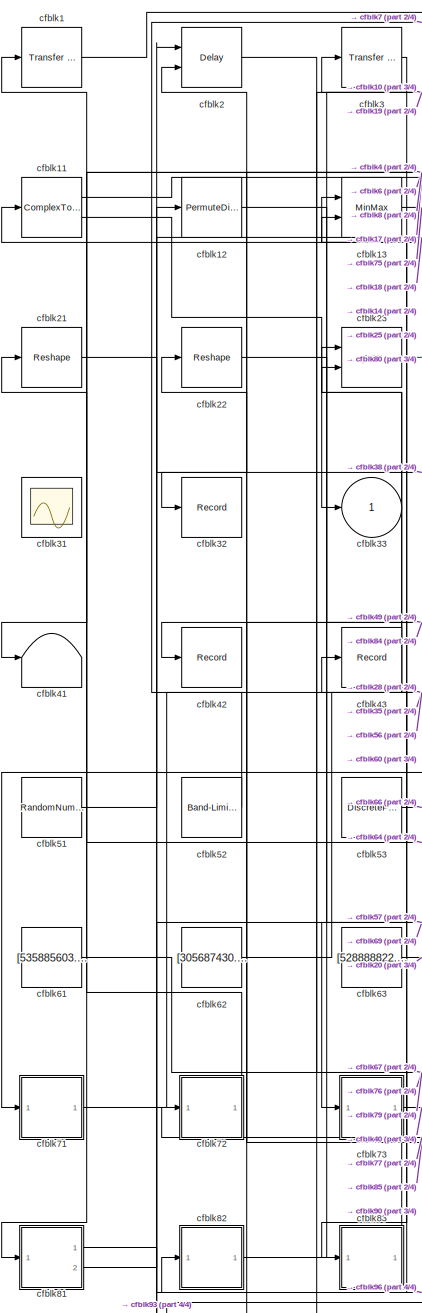
[diagram: root canvas - part 1/4, left side, full height]
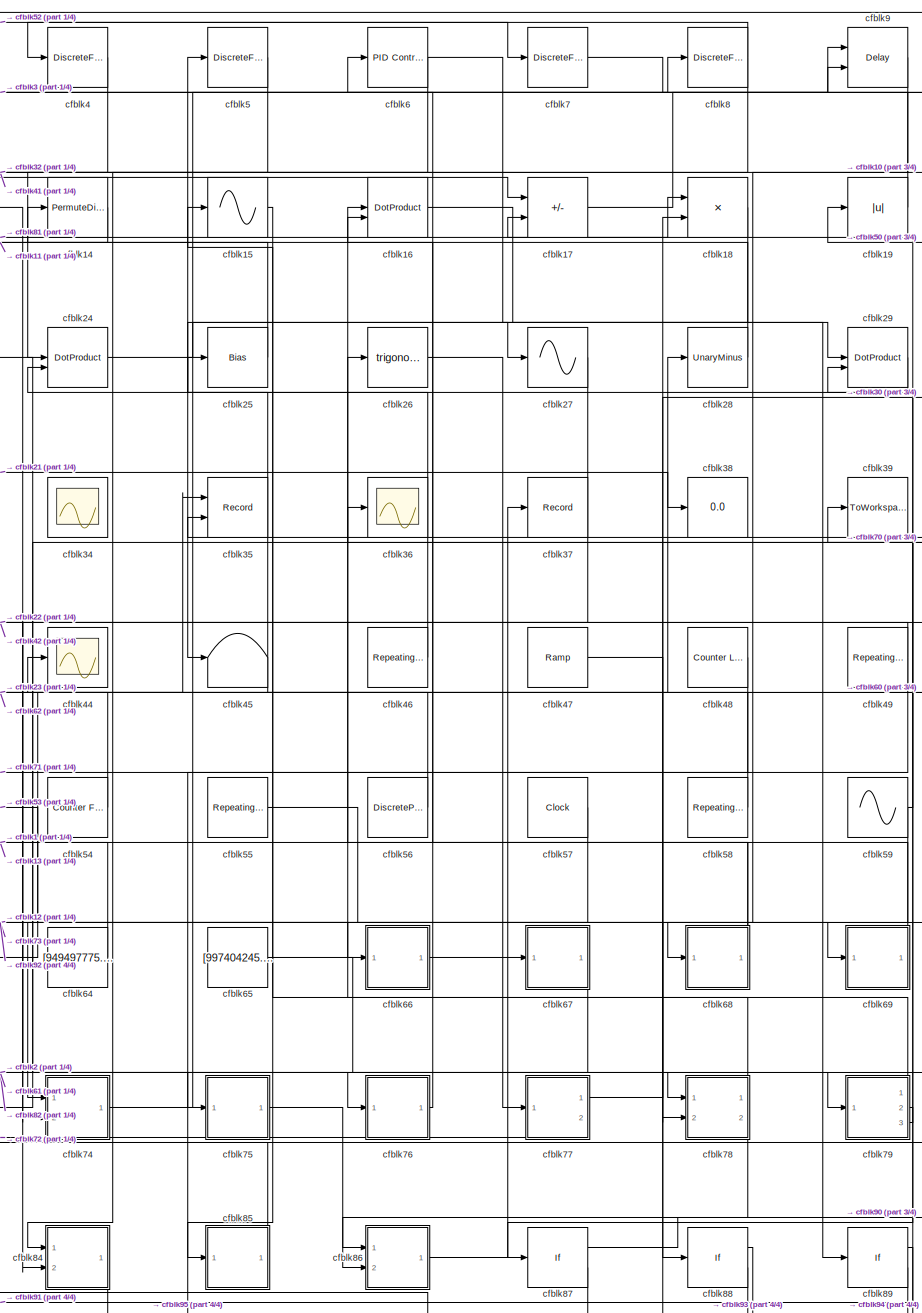
[diagram: root canvas - part 2/4, center side, full height]
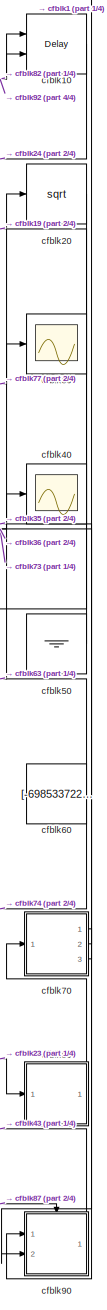
[diagram: root canvas - part 3/4, right side, full height]
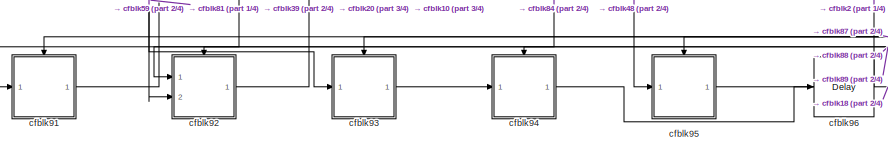
[diagram: root canvas - part 4/4, bottom left region]
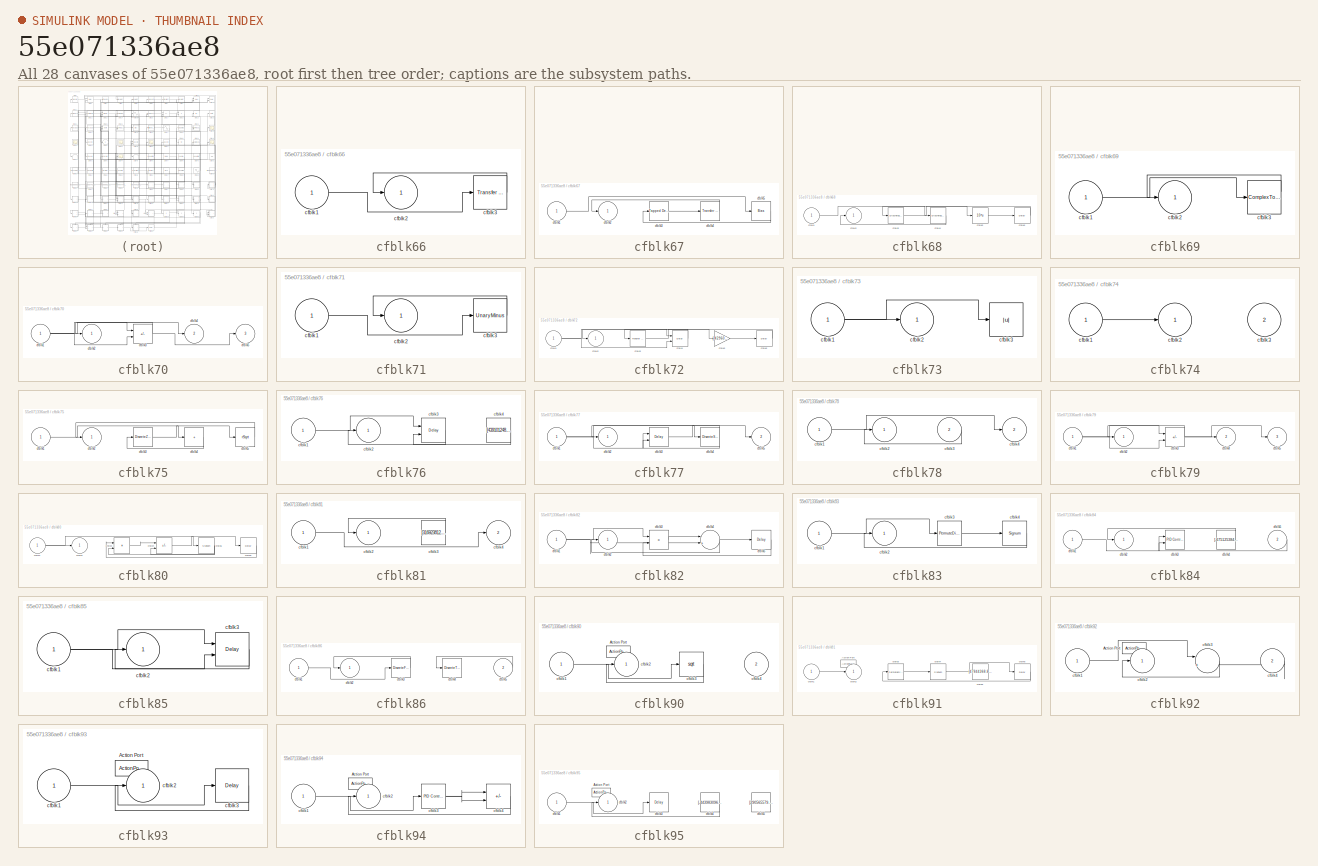
[diagram: thumbnail index - all 28 canvases of the model, root first then tree order]
MODEL slx_55e071336ae8
KIND model
CONFIG AbsTol = auto
CONFIG EnableMultiTasking = off
CONFIG FixedStep = auto
CONFIG MaxStep = auto
CONFIG MinStep = auto
CONFIG RelTol = 1e-3
CONFIG SampleTimeConstraint = Unconstrained
CONFIG SolverName = VariableStepAuto
CONFIG StartTime = 0.0
CONFIG StopTime = 10.0
BLOCK [Reference] cfblk1  REF=simulink/Discrete/Transfer Fcn
Real Zero
  Ports = [1, 1]
  SourceBlock = simulink/Discrete/Transfer Fcn\nReal Zero
  SourceProductBaseCode = SL
  SourceType = Transfer Fcn Real Zero
BLOCK [Delay] cfblk10
  InputPortMap = u0,e6
  Ports = [2, 1]
  SampleTime = 1
  ShowEnablePort = on
BLOCK [ComplexToRealImag] cfblk11
  Ports = [1, 2]
BLOCK [PermuteDimensions] cfblk12
BLOCK [MinMax] cfblk13
  Inputs = 2
  Ports = [2, 1]
BLOCK [PermuteDimensions] cfblk14
BLOCK [Sin] cfblk15
  Ports = [1, 1]
  SampleTime = 0
  TimeSource = Use external signal
BLOCK [DotProduct] cfblk16
  OutDataTypeStr = Inherit: Inherit via internal rule
BLOCK [Sum] cfblk17
  IconShape = rectangular
  Inputs = +-
  Ports = [2, 1]
BLOCK [Product] cfblk18
  Inputs = **
  Ports = [2, 1]
BLOCK [Abs] cfblk19
  SaturateOnIntegerOverflow = off
BLOCK [Delay] cfblk2
  InputPortMap = u0,e6
  Ports = [2, 1]
  SampleTime = 1
  ShowEnablePort = on
BLOCK [Sqrt] cfblk20
BLOCK [Reshape] cfblk21
  Ports = [1, 1]
BLOCK [Reshape] cfblk22
  Ports = [1, 1]
BLOCK [Math] cfblk23
  Operator = pow
  Ports = [2, 1]
BLOCK [DotProduct] cfblk24
  OutDataTypeStr = Inherit: Inherit via internal rule
BLOCK [Bias] cfblk25
  Bias = [844499976.842909]
  SaturateOnIntegerOverflow = off
BLOCK [Trigonometry] cfblk26
  Ports = [1, 1]
BLOCK [Sin] cfblk27
  Ports = [1, 1]
  SampleTime = 0
  TimeSource = Use external signal
BLOCK [UnaryMinus] cfblk28
BLOCK [DotProduct] cfblk29
  OutDataTypeStr = Inherit: Inherit via internal rule
BLOCK [Reference] cfblk3  REF=simulink/Discrete/Transfer Fcn
First Order
  Ports = [1, 1]
  SourceBlock = simulink/Discrete/Transfer Fcn\nFirst Order
  SourceProductBaseCode = SL
  SourceType = First Order Transfer Fcn
BLOCK [Scope] cfblk30
  Floating = off
  NumInputPorts = 1
  Ports = [1]
BLOCK [Scope] cfblk31
  Floating = on
  NumInputPorts = 1
  Ports = []
BLOCK [Record] cfblk32
  FileSettingsInternal = {"entries":[{"content":{"excelSettings":{"content":{},"type":"Streamout.ExcelSettings"}},"type":"Streamout.FileSettingStorage","uuid":"f8cac019-48e6-4489-905a-432bda5f2089"}],"packageUris":["http://schema.mathworks.com/mf0/streamout_blocks/R2020a"],"version":"1.0"}
  Ports = [1]
  SignalsInternal = {"entries":[{"content":{"signals":[{"content":{"blockPath":["sampleModel254/cfblk32"],"channel":[],"dimensions":[1],"domain":"sampleModel254/cfblk32","lineColor":"#64d413","plots":[1],"port":1,"sid":[""],"signalID":10374,"signalName":"cfblk6"},"type":"RecordBlkView.Signal","uuid":"dce0b534-ecb6-4d5b-a233-2a280a14c64b"}]},"type":"RecordBlkView.InputSignals","uuid":"4063d075-ef2d-4937-aee0-8c6ee8d3b...<+97ch>
  VisualizationBindings = {"sparklinesplugin":{"info":[{"bindingParametersList":[],"subplotID":1}]}}
BLOCK [Outport] cfblk33
BLOCK [Scope] cfblk34
  Floating = on
  NumInputPorts = 1
  Ports = []
BLOCK [Record] cfblk35
  CompatibilityTag = XY
  FileSettingsInternal = {"entries":[{"content":{"excelSettings":{"content":{},"type":"Streamout.ExcelSettings"}},"type":"Streamout.FileSettingStorage","uuid":"45c7964c-3e30-4dde-8807-5f474ab24dd7"}],"packageUris":["http://schema.mathworks.com/mf0/streamout_blocks/R2020a"],"version":"1.0"}
  Layout = [1 1]
  Ports = [2]
  SignalsInternal = {"entries":[{"content":{"signals":[{"content":{"blockPath":["sampleModel254/cfblk35"],"channel":[],"dimensions":[1],"domain":"sampleModel254/cfblk35","lineColor":"#a2142f","plots":[1],"port":1,"sid":[""],"signalID":10378,"signalName":"cfblk71"},"type":"RecordBlkView.Signal","uuid":"ef5cb758-7369-4c78-a78d-835c385c3eb8"},{"content":{"blockPath":["sampleModel254/cfblk35"],"channel":[],"dimensions":[...<+387ch>
  VisualizationBindings = {"xyplotplugin":{"info":[{"series":[{"bindingParametersList":[{"parameter":"X-Axis","signalID":10378,"signalName":"cfblk71"},{"parameter":"Y-Axis","signalID":10382,"signalName":"cfblk70:3"}],"seriesID":26922}],"subplotID":1}]}}
BLOCK [Scope] cfblk36
  Floating = off
  NumInputPorts = 1
  Ports = [1]
BLOCK [Record] cfblk37
  FileSettingsInternal = {"entries":[{"content":{"excelSettings":{"content":{},"type":"Streamout.ExcelSettings"}},"type":"Streamout.FileSettingStorage","uuid":"cea6e5c2-86dc-4383-be1d-b91c9e701202"}],"packageUris":["http://schema.mathworks.com/mf0/streamout_blocks/R2020a"],"version":"1.0"}
  Ports = [1]
  SignalsInternal = {"entries":[{"content":{"signals":[{"content":{"blockPath":["sampleModel254/cfblk37"],"channel":[],"dimensions":[1],"domain":"sampleModel254/cfblk37","lineColor":"#d95319","plots":[1],"port":1,"sid":[""],"signalID":10394,"signalName":"cfblk66"},"type":"RecordBlkView.Signal","uuid":"769467fa-09e5-418b-a735-847f3fde8334"}]},"type":"RecordBlkView.InputSignals","uuid":"660e46a3-809b-43d8-8dce-437cd846...<+98ch>
  VisualizationBindings = {"sparklinesplugin":{"info":[{"bindingParametersList":[],"subplotID":1}]}}
BLOCK [Display] cfblk38
  Decimation = 1
  Ports = [1]
BLOCK [ToWorkspace] cfblk39
  FixptAsFi = on
  MaxDataPoints = inf
  Ports = [1]
  SampleTime = -1
  SaveFormat = Timeseries
  VariableName = ezuajsf
BLOCK [DiscreteFilter] cfblk4
  InputPortMap = u0
  Ports = [1, 1]
  SampleTime = 1
BLOCK [Scope] cfblk40
  Floating = off
  NumInputPorts = 1
  Ports = [1]
BLOCK [Terminator] cfblk41
BLOCK [Record] cfblk42
  FileSettingsInternal = {"entries":[{"content":{"excelSettings":{"content":{},"type":"Streamout.ExcelSettings"}},"type":"Streamout.FileSettingStorage","uuid":"c36e397d-8249-40e7-b36d-c436f8041f2b"}],"packageUris":["http://schema.mathworks.com/mf0/streamout_blocks/R2020a"],"version":"1.0"}
  Ports = [1]
  SignalsInternal = {"entries":[{"content":{"signals":[{"content":{"blockPath":["sampleModel254/cfblk42"],"channel":[],"dimensions":[1],"domain":"sampleModel254/cfblk42","lineColor":"#22b573","plots":[1],"port":1,"sid":[""],"signalID":10386,"signalName":"cfblk49"},"type":"RecordBlkView.Signal","uuid":"95bb58e3-29ab-4543-933f-3fe3cf8075e7"}]},"type":"RecordBlkView.InputSignals","uuid":"3d27722b-4af2-4bd2-8e99-f87c6225...<+98ch>
  VisualizationBindings = {"sparklinesplugin":{"info":[{"bindingParametersList":[],"subplotID":1}]}}
BLOCK [Record] cfblk43
  FileSettingsInternal = {"entries":[{"content":{"excelSettings":{"content":{},"type":"Streamout.ExcelSettings"}},"type":"Streamout.FileSettingStorage","uuid":"d18e721d-55df-43b9-9b5f-e2e7fb6a57d4"}],"packageUris":["http://schema.mathworks.com/mf0/streamout_blocks/R2020a"],"version":"1.0"}
  Ports = [1]
  SignalsInternal = {"entries":[{"content":{"signals":[{"content":{"blockPath":["sampleModel254/cfblk43"],"channel":[],"dimensions":[1,1],"domain":"sampleModel254/cfblk43","lineColor":"#0072bd","plots":[1],"port":1,"sid":[""],"signalID":10390,"signalName":"cfblk90"},"type":"RecordBlkView.Signal","uuid":"5a0785be-ac31-40ab-801e-d0ec680084d0"}]},"type":"RecordBlkView.InputSignals","uuid":"405e9301-8fb1-412e-9e94-656a63...<+100ch>
  VisualizationBindings = {"sparklinesplugin":{"info":[{"bindingParametersList":[],"subplotID":1}]}}
BLOCK [Scope] cfblk44
  Floating = off
  NumInputPorts = 1
  Ports = [1]
BLOCK [Terminator] cfblk45
BLOCK [Reference] cfblk46  REF=simulink/Sources/Repeating
Sequence
  Ports = [0, 1]
  SourceBlock = simulink/Sources/Repeating\nSequence
  SourceProductBaseCode = SL
  SourceType = Repeating table
BLOCK [Reference] cfblk47  REF=simulink/Sources/Ramp
  Ports = [0, 1]
  SourceBlock = simulink/Sources/Ramp
  SourceProductBaseCode = SL
  SourceType = Ramp
BLOCK [Reference] cfblk48  REF=simulink/Sources/Counter
Limited
  Ports = [0, 1]
  SourceBlock = simulink/Sources/Counter\nLimited
  SourceProductBaseCode = SL
  SourceType = Counter Limited
BLOCK [Reference] cfblk49  REF=simulink/Sources/Repeating
Sequence
Interpolated
  Ports = [0, 1]
  SourceBlock = simulink/Sources/Repeating\nSequence\nInterpolated
  SourceProductBaseCode = SL
  SourceType = Repeating Sequence Interpolated
BLOCK [DiscreteFir] cfblk5
  InputPortMap = u0
  OutputPortMap = o0
  Ports = [1, 1]
  SampleTime = 1
BLOCK [Ground] cfblk50
BLOCK [RandomNumber] cfblk51
  Mean = [-71879.908599]
  SampleTime = 0.1
  Seed = [190273375.000000]
  Variance = [65031.092299]
BLOCK [Reference] cfblk52  REF=simulink/Sources/Band-Limited
White Noise
  Ports = [0, 1]
  SourceBlock = simulink/Sources/Band-Limited\nWhite Noise
  SourceProductBaseCode = SL
  SourceType = Band-Limited White Noise.
BLOCK [DiscretePulseGenerator] cfblk53
  Amplitude = [128987479.442935]
  Period = [95035691.423141]
  PhaseDelay = [6.000000]
  Ports = [0, 1]
  PulseType = Time based
  PulseWidth = 5
BLOCK [Reference] cfblk54  REF=simulink/Sources/Counter
Free-Running
  Ports = [0, 1]
  SourceBlock = simulink/Sources/Counter\nFree-Running
  SourceProductBaseCode = SL
  SourceType = Counter Free-Running
BLOCK [Reference] cfblk55  REF=simulink/Sources/Repeating
Sequence
Stair
  Ports = [0, 1]
  SourceBlock = simulink/Sources/Repeating\nSequence\nStair
  SourceProductBaseCode = SL
  SourceType = Repeating Sequence Stair
BLOCK [DiscretePulseGenerator] cfblk56
  Amplitude = [530617936.673465]
  Period = [21583410.222878]
  PhaseDelay = [1.000000]
  Ports = [0, 1]
  PulseType = Time based
  PulseWidth = 5
BLOCK [Clock] cfblk57
BLOCK [Reference] cfblk58  REF=simulink/Sources/Repeating
Sequence
Stair
  Ports = [0, 1]
  SourceBlock = simulink/Sources/Repeating\nSequence\nStair
  SourceProductBaseCode = SL
  SourceType = Repeating Sequence Stair
BLOCK [Sin] cfblk59
  Amplitude = [160730542.928432]
  Bias = [-895763659.447249]
  Ports = [0, 1]
  SampleTime = 0
BLOCK [Reference] cfblk6  REF=slpidlib/PID Controller
  Ports = [1, 1]
  SourceBlock = slpidlib/PID Controller
  SourceProductBaseCode = SL
  SourceType = PID 1dof
BLOCK [Constant] cfblk60
  SampleTime = 1
  Value = [-698533722.368524]
BLOCK [Constant] cfblk61
  SampleTime = 1
  Value = [535885603.010762]
BLOCK [Constant] cfblk62
  SampleTime = 1
  Value = [305687430.388225]
BLOCK [Constant] cfblk63
  SampleTime = 1
  Value = [528888822.615743]
BLOCK [Constant] cfblk64
  SampleTime = 1
  Value = [949497775.080613]
BLOCK [Constant] cfblk65
  SampleTime = 1
  Value = [997404245.696209]
BLOCK [SubSystem] cfblk66
  Ports = [1, 1]
  RequestExecContextInheritance = off
BLOCK [Inport] cfblk66/cfblk1
BLOCK [Outport] cfblk66/cfblk2
BLOCK [Reference] cfblk66/cfblk3  REF=simulink/Discrete/Transfer Fcn
Real Zero
  Ports = [1, 1]
  SourceBlock = simulink/Discrete/Transfer Fcn\nReal Zero
  SourceProductBaseCode = SL
  SourceType = Transfer Fcn Real Zero
BLOCK [SubSystem] cfblk67
  Ports = [1, 1]
  RequestExecContextInheritance = off
BLOCK [Inport] cfblk67/cfblk1
BLOCK [Outport] cfblk67/cfblk2
BLOCK [Reference] cfblk67/cfblk3  REF=simulink/Discrete/Tapped Delay
  Ports = [1, 1]
  SourceBlock = simulink/Discrete/Tapped Delay
  SourceProductBaseCode = SL
  SourceType = Tapped Delay Line
BLOCK [Reference] cfblk67/cfblk4  REF=simulink/Discrete/Transfer Fcn
First Order
  Ports = [1, 1]
  SourceBlock = simulink/Discrete/Transfer Fcn\nFirst Order
  SourceProductBaseCode = SL
  SourceType = First Order Transfer Fcn
BLOCK [Bias] cfblk67/cfblk5
  Bias = [493351952.248156]
  SaturateOnIntegerOverflow = off
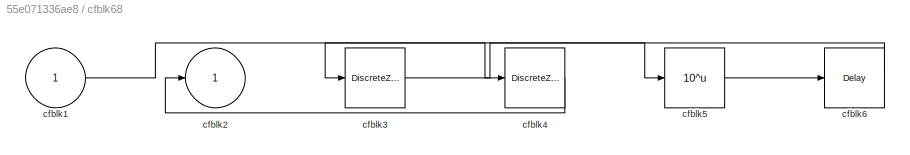
BLOCK [SubSystem] cfblk68
  Ports = [1, 1]
  RequestExecContextInheritance = off
BLOCK [Inport] cfblk68/cfblk1
BLOCK [Outport] cfblk68/cfblk2
BLOCK [DiscreteZeroPole] cfblk68/cfblk3
  Gain = 1
  Poles = [0 0.5]
BLOCK [DiscreteZeroPole] cfblk68/cfblk4
  Gain = 1
  Poles = [0 0.5]
BLOCK [Math] cfblk68/cfblk5
  Operator = 10^u
  Ports = [1, 1]
BLOCK [Delay] cfblk68/cfblk6
  InputPortMap = u0
  Ports = [1, 1]
  SampleTime = 1
BLOCK [SubSystem] cfblk69
  Ports = [1, 1]
  RequestExecContextInheritance = off
BLOCK [Inport] cfblk69/cfblk1
BLOCK [Outport] cfblk69/cfblk2
BLOCK [ComplexToRealImag] cfblk69/cfblk3
  Ports = [1, 2]
BLOCK [DiscreteFilter] cfblk7
  InputPortMap = u0
  Ports = [1, 1]
  SampleTime = 1
BLOCK [SubSystem] cfblk70
  Ports = [1, 3]
  RequestExecContextInheritance = off
BLOCK [Inport] cfblk70/cfblk1
BLOCK [Outport] cfblk70/cfblk2
BLOCK [Sum] cfblk70/cfblk3
  IconShape = rectangular
  Inputs = +-
  Ports = [2, 1]
BLOCK [Outport] cfblk70/cfblk4
  Port = 2
BLOCK [Outport] cfblk70/cfblk5
  Port = 3
BLOCK [SubSystem] cfblk71
  Ports = [1, 1]
  RequestExecContextInheritance = off
BLOCK [Inport] cfblk71/cfblk1
BLOCK [Outport] cfblk71/cfblk2
BLOCK [UnaryMinus] cfblk71/cfblk3
BLOCK [SubSystem] cfblk72
  Ports = [1, 1]
  RequestExecContextInheritance = off
BLOCK [Inport] cfblk72/cfblk1
BLOCK [Outport] cfblk72/cfblk2
BLOCK [Reference] cfblk72/cfblk3  REF=simulink/Discrete/Transfer Fcn
Lead or Lag
  Ports = [1, 1]
  SourceBlock = simulink/Discrete/Transfer Fcn\nLead or Lag
  SourceProductBaseCode = SL
  SourceType = Lead or Lag Compensator
BLOCK [Delay] cfblk72/cfblk4
  DelayLengthSource = Input port
  InputPortMap = u0,p1
  Ports = [2, 1]
  SampleTime = 1
BLOCK [Gain] cfblk72/cfblk5
  Gain = [-429600139.086581]
BLOCK [Delay] cfblk72/cfblk6
  InputPortMap = u0
  Ports = [1, 1]
  SampleTime = 1
BLOCK [SubSystem] cfblk73
  Ports = [1, 1]
  RequestExecContextInheritance = off
BLOCK [Inport] cfblk73/cfblk1
BLOCK [Outport] cfblk73/cfblk2
BLOCK [Abs] cfblk73/cfblk3
  SaturateOnIntegerOverflow = off
BLOCK [SubSystem] cfblk74
  Ports = [2, 1]
  RequestExecContextInheritance = off
BLOCK [Inport] cfblk74/cfblk1
BLOCK [Outport] cfblk74/cfblk2
BLOCK [Inport] cfblk74/cfblk3
  Port = 2
BLOCK [SubSystem] cfblk75
  Ports = [1, 1]
  RequestExecContextInheritance = off
BLOCK [Inport] cfblk75/cfblk1
BLOCK [Outport] cfblk75/cfblk2
BLOCK [DiscreteZeroPole] cfblk75/cfblk3
  Gain = 1
  Poles = [0 0.5]
BLOCK [Sum] cfblk75/cfblk4
  IconShape = rectangular
  Inputs = +
  Ports = [1, 1]
BLOCK [Sqrt] cfblk75/cfblk5
  AlgorithmType = Newton-Raphson
  Operator = rSqrt
BLOCK [SubSystem] cfblk76
  Ports = [1, 1]
  RequestExecContextInheritance = off
BLOCK [Inport] cfblk76/cfblk1
BLOCK [Outport] cfblk76/cfblk2
BLOCK [Delay] cfblk76/cfblk3
  DelayLengthSource = Input port
  InputPortMap = u0,p1
  Ports = [2, 1]
  SampleTime = 1
BLOCK [Constant] cfblk76/cfblk4
  SampleTime = 1
  Value = [439101248.197444]
BLOCK [SubSystem] cfblk77
  Ports = [1, 2]
  RequestExecContextInheritance = off
BLOCK [Inport] cfblk77/cfblk1
BLOCK [Outport] cfblk77/cfblk2
BLOCK [Delay] cfblk77/cfblk3
  InputPortMap = u0,e6
  Ports = [2, 1]
  SampleTime = 1
  ShowEnablePort = on
BLOCK [DiscreteStateSpace] cfblk77/cfblk4
BLOCK [Outport] cfblk77/cfblk5
  Port = 2
BLOCK [SubSystem] cfblk78
  Ports = [2, 2]
  RequestExecContextInheritance = off
BLOCK [Inport] cfblk78/cfblk1
BLOCK [Outport] cfblk78/cfblk2
BLOCK [Inport] cfblk78/cfblk3
  Port = 2
BLOCK [Outport] cfblk78/cfblk4
  Port = 2
BLOCK [SubSystem] cfblk79
  Ports = [1, 3]
  RequestExecContextInheritance = off
BLOCK [Inport] cfblk79/cfblk1
BLOCK [Outport] cfblk79/cfblk2
BLOCK [Sum] cfblk79/cfblk3
  IconShape = rectangular
  Inputs = +-
  Ports = [2, 1]
BLOCK [Outport] cfblk79/cfblk4
  Port = 2
BLOCK [Outport] cfblk79/cfblk5
  Port = 3
BLOCK [DiscreteFilter] cfblk8
  InputPortMap = u0
  Ports = [1, 1]
  SampleTime = 1
BLOCK [SubSystem] cfblk80
  Ports = [1, 1]
  RequestExecContextInheritance = off
BLOCK [Inport] cfblk80/cfblk1
BLOCK [Outport] cfblk80/cfblk2
BLOCK [Product] cfblk80/cfblk3
  Ports = [2, 1]
BLOCK [Sum] cfblk80/cfblk4
  IconShape = rectangular
  Inputs = +-
  Ports = [2, 1]
BLOCK [Signum] cfblk80/cfblk5
BLOCK [Delay] cfblk80/cfblk6
  InputPortMap = u0
  Ports = [1, 1]
  SampleTime = 1
BLOCK [SubSystem] cfblk81
  Ports = [1, 2]
  RequestExecContextInheritance = off
BLOCK [Inport] cfblk81/cfblk1
BLOCK [Outport] cfblk81/cfblk2
BLOCK [Constant] cfblk81/cfblk3
  SampleTime = 1
  Value = [316923812.168130]
BLOCK [Outport] cfblk81/cfblk4
  Port = 2
BLOCK [SubSystem] cfblk82
  Ports = [1, 1]
  RequestExecContextInheritance = off
BLOCK [Inport] cfblk82/cfblk1
BLOCK [Outport] cfblk82/cfblk2
BLOCK [Product] cfblk82/cfblk3
  Ports = [2, 1]
BLOCK [Sum] cfblk82/cfblk4
  Inputs = |++
  Ports = [2, 1]
BLOCK [Delay] cfblk82/cfblk5
  InputPortMap = u0
  Ports = [1, 1]
  SampleTime = 1
BLOCK [SubSystem] cfblk83
  Ports = [1, 1]
  RequestExecContextInheritance = off
BLOCK [Inport] cfblk83/cfblk1
BLOCK [Outport] cfblk83/cfblk2
BLOCK [PermuteDimensions] cfblk83/cfblk3
BLOCK [Signum] cfblk83/cfblk4
BLOCK [SubSystem] cfblk84
  Ports = [2, 1]
  RequestExecContextInheritance = off
BLOCK [Inport] cfblk84/cfblk1
BLOCK [Outport] cfblk84/cfblk2
BLOCK [Reference] cfblk84/cfblk3  REF=slpidlib/PID Controller (2DOF)
  Ports = [2, 1]
  SourceBlock = slpidlib/PID Controller (2DOF)
  SourceProductBaseCode = SL
  SourceType = PID 2dof
BLOCK [Constant] cfblk84/cfblk4
  SampleTime = 1
  Value = [-675125384.353704]
BLOCK [Inport] cfblk84/cfblk5
  Port = 2
BLOCK [SubSystem] cfblk85
  Ports = [1, 1]
  RequestExecContextInheritance = off
BLOCK [Inport] cfblk85/cfblk1
BLOCK [Outport] cfblk85/cfblk2
BLOCK [Delay] cfblk85/cfblk3
  InputPortMap = u0,e6
  Ports = [2, 1]
  SampleTime = 1
  ShowEnablePort = on
BLOCK [SubSystem] cfblk86
  Ports = [2, 1]
  RequestExecContextInheritance = off
BLOCK [Inport] cfblk86/cfblk1
BLOCK [Outport] cfblk86/cfblk2
BLOCK [DiscreteFir] cfblk86/cfblk3
  InputPortMap = u0
  OutputPortMap = o0
  Ports = [1, 1]
  SampleTime = 1
BLOCK [DiscreteTransferFcn] cfblk86/cfblk4
  InputPortMap = u0
  Ports = [1, 1]
  SampleTime = 1
BLOCK [Inport] cfblk86/cfblk5
  Port = 2
BLOCK [If] cfblk87
  IfExpression = u1 >= 0
  Ports = [1, 2]
  SampleTime = 1
BLOCK [If] cfblk88
  IfExpression = u1 >= 0
  Ports = [1, 2]
  SampleTime = 1
BLOCK [If] cfblk89
  IfExpression = u1 >= 0
  Ports = [1, 2]
  SampleTime = 1
BLOCK [Delay] cfblk9
  DelayLengthSource = Input port
  InputPortMap = u0,p1
  Ports = [2, 1]
  SampleTime = 1
BLOCK [SubSystem] cfblk90
  Ports = [2, 1, 0, 0, 0, 0, 0, 1]
  RequestExecContextInheritance = off
  TreatAsAtomicUnit = on
BLOCK [ActionPort] cfblk90/Action Port
  ActionPortLabel = if(u1 >= 0)
BLOCK [Inport] cfblk90/cfblk1
BLOCK [Outport] cfblk90/cfblk2
BLOCK [Sqrt] cfblk90/cfblk3
BLOCK [Inport] cfblk90/cfblk4
  Port = 2
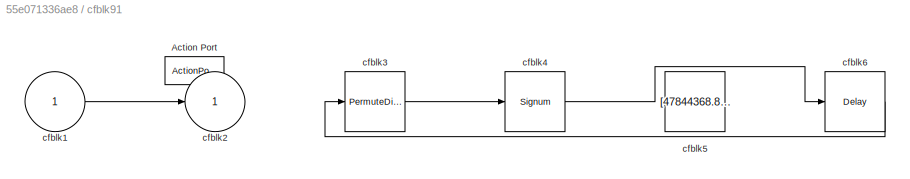
BLOCK [SubSystem] cfblk91
  Ports = [1, 1, 0, 0, 0, 0, 0, 1]
  RequestExecContextInheritance = off
  TreatAsAtomicUnit = on
BLOCK [ActionPort] cfblk91/Action Port
  ActionPortLabel = else
BLOCK [Inport] cfblk91/cfblk1
BLOCK [Outport] cfblk91/cfblk2
BLOCK [PermuteDimensions] cfblk91/cfblk3
BLOCK [Signum] cfblk91/cfblk4
BLOCK [Constant] cfblk91/cfblk5
  SampleTime = 1
  Value = [47844368.817378]
BLOCK [Delay] cfblk91/cfblk6
  InputPortMap = u0
  Ports = [1, 1]
BLOCK [SubSystem] cfblk92
  Ports = [2, 1, 0, 0, 0, 0, 0, 1]
  RequestExecContextInheritance = off
  TreatAsAtomicUnit = on
BLOCK [ActionPort] cfblk92/Action Port
  ActionPortLabel = if(u1 >= 0)
BLOCK [Inport] cfblk92/cfblk1
BLOCK [Outport] cfblk92/cfblk2
BLOCK [Sum] cfblk92/cfblk3
  Inputs = |++
  Ports = [2, 1]
BLOCK [Inport] cfblk92/cfblk4
  Port = 2
BLOCK [SubSystem] cfblk93
  Ports = [1, 1, 0, 0, 0, 0, 0, 1]
  RequestExecContextInheritance = off
  TreatAsAtomicUnit = on
BLOCK [ActionPort] cfblk93/Action Port
  ActionPortLabel = else
BLOCK [Inport] cfblk93/cfblk1
BLOCK [Outport] cfblk93/cfblk2
BLOCK [Delay] cfblk93/cfblk3
  InputPortMap = u0
  Ports = [1, 1]
BLOCK [SubSystem] cfblk94
  Ports = [1, 1, 0, 0, 0, 0, 0, 1]
  RequestExecContextInheritance = off
  TreatAsAtomicUnit = on
BLOCK [ActionPort] cfblk94/Action Port
  ActionPortLabel = if(u1 >= 0)
BLOCK [Inport] cfblk94/cfblk1
BLOCK [Outport] cfblk94/cfblk2
BLOCK [Reference] cfblk94/cfblk3  REF=slpidlib/PID Controller
  Ports = [1, 1]
  SourceBlock = slpidlib/PID Controller
  SourceProductBaseCode = SL
  SourceType = PID 1dof
BLOCK [Sum] cfblk94/cfblk4
  IconShape = rectangular
  Inputs = +-
  Ports = [2, 1]
BLOCK [SubSystem] cfblk95
  Ports = [1, 1, 0, 0, 0, 0, 0, 1]
  RequestExecContextInheritance = off
  TreatAsAtomicUnit = on
BLOCK [ActionPort] cfblk95/Action Port
  ActionPortLabel = else
BLOCK [Inport] cfblk95/cfblk1
BLOCK [Outport] cfblk95/cfblk2
BLOCK [Delay] cfblk95/cfblk3
  InputPortMap = u0
  Ports = [1, 1]
BLOCK [Constant] cfblk95/cfblk4
  SampleTime = 1
  Value = [-443983096.082801]
BLOCK [Constant] cfblk95/cfblk5
  SampleTime = 1
  Value = [290565579.851163]
BLOCK [Delay] cfblk96
  InputPortMap = u0
  Ports = [1, 1]
  SampleTime = 1
LINE cfblk10:1 -> cfblk24:1
LINE cfblk11:1 -> cfblk17:1
LINE cfblk11:2 -> cfblk33:1
LINE cfblk12:1 -> cfblk69:1
LINE cfblk13:1 -> cfblk75:1
LINE cfblk14:1 -> cfblk13:2
LINE cfblk15:1 -> cfblk85:1
LINE cfblk16:1 -> cfblk89:1
LINE cfblk17:1 -> cfblk9:1
LINE cfblk18:1 -> cfblk45:1
LINE cfblk19:1 -> cfblk3:1
LINE cfblk1:1 -> cfblk90:1
LINE cfblk20:1 -> cfblk92:1
LINE cfblk21:1 -> cfblk38:1
LINE cfblk22:1 -> cfblk84:2
LINE cfblk23:1 -> cfblk80:1
LINE cfblk24:1 -> cfblk27:1
LINE cfblk25:1 -> cfblk11:1
LINE cfblk26:1 -> cfblk77:1
LINE cfblk27:1 -> cfblk74:2
LINE cfblk28:1 -> cfblk14:1
LINE cfblk29:1 -> cfblk24:2
LINE cfblk2:1 -> cfblk79:1
LINE cfblk3:1 -> cfblk83:1
LINE cfblk46:1 -> cfblk5:1
LINE cfblk47:1 -> cfblk78:2
LINE cfblk48:1 -> cfblk95:1
NET cfblk49:1 -> cfblk42:1, cfblk71:1
LINE cfblk4:1 -> cfblk41:1
LINE cfblk50:1 -> cfblk19:1
LINE cfblk51:1 -> cfblk12:1
LINE cfblk52:1 -> cfblk7:1
LINE cfblk53:1 -> cfblk66:1
LINE cfblk54:1 -> cfblk44:1
LINE cfblk55:1 -> cfblk88:1
LINE cfblk56:1 -> cfblk23:1
LINE cfblk57:1 -> cfblk73:1
LINE cfblk58:1 -> cfblk25:1
NET cfblk59:1 -> cfblk29:2, cfblk92:2
LINE cfblk5:1 -> cfblk84:1
NET cfblk60:1 -> cfblk23:2, cfblk74:1
LINE cfblk61:1 -> cfblk76:1
LINE cfblk62:1 -> cfblk28:1
LINE cfblk63:1 -> cfblk20:1
LINE cfblk64:1 -> cfblk13:1
LINE cfblk65:1 -> cfblk78:1
LINE cfblk66/cfblk1:1 -> cfblk66/cfblk3:1
LINE cfblk66/cfblk3:1 -> cfblk66/cfblk2:1
LINE cfblk66:1 -> cfblk37:1
LINE cfblk67/cfblk1:1 -> cfblk67/cfblk5:1
LINE cfblk67/cfblk3:1 -> cfblk67/cfblk4:1
LINE cfblk67/cfblk4:1 -> cfblk67/cfblk2:1
LINE cfblk67/cfblk5:1 -> cfblk67/cfblk3:1
LINE cfblk67:1 -> cfblk82:1
LINE cfblk68/cfblk1:1 -> cfblk68/cfblk4:1
LINE cfblk68/cfblk3:1 -> cfblk68/cfblk5:1
LINE cfblk68/cfblk4:1 -> cfblk68/cfblk2:1
LINE cfblk68/cfblk5:1 -> cfblk68/cfblk6:1
LINE cfblk68/cfblk6:1 -> cfblk68/cfblk3:1
NET cfblk68:1 -> cfblk16:1, cfblk6:1
LINE cfblk69/cfblk1:1 -> cfblk69/cfblk3:1
LINE cfblk69/cfblk3:1 -> cfblk69/cfblk2:1
LINE cfblk69:1 -> cfblk1:1
NET cfblk6:1 -> cfblk29:1, cfblk32:1
NET cfblk70/cfblk1:1 -> cfblk70/cfblk3:1, cfblk70/cfblk3:2, cfblk70/cfblk4:1
NET cfblk70/cfblk3:1 -> cfblk70/cfblk2:1, cfblk70/cfblk5:1
LINE cfblk70:1 -> cfblk90:2
LINE cfblk70:2 -> cfblk36:1
LINE cfblk70:3 -> cfblk35:2
LINE cfblk71/cfblk1:1 -> cfblk71/cfblk3:1
LINE cfblk71/cfblk3:1 -> cfblk71/cfblk2:1
LINE cfblk71:1 -> cfblk35:1
NET cfblk72/cfblk1:1 -> cfblk72/cfblk4:1, cfblk72/cfblk4:2
LINE cfblk72/cfblk3:1 -> cfblk72/cfblk5:1
LINE cfblk72/cfblk4:1 -> cfblk72/cfblk2:1
LINE cfblk72/cfblk5:1 -> cfblk72/cfblk6:1
LINE cfblk72/cfblk6:1 -> cfblk72/cfblk3:1
LINE cfblk72:1 -> cfblk21:1
NET cfblk73/cfblk1:1 -> cfblk73/cfblk2:1, cfblk73/cfblk3:1
LINE cfblk73:1 -> cfblk40:1
LINE cfblk74/cfblk1:1 -> cfblk74/cfblk2:1
LINE cfblk74:1 -> cfblk8:1
LINE cfblk75/cfblk1:1 -> cfblk75/cfblk4:1
LINE cfblk75/cfblk3:1 -> cfblk75/cfblk5:1
LINE cfblk75/cfblk4:1 -> cfblk75/cfblk3:1
LINE cfblk75/cfblk5:1 -> cfblk75/cfblk2:1
LINE cfblk75:1 -> cfblk86:1
LINE cfblk76/cfblk1:1 -> cfblk76/cfblk3:1
LINE cfblk76/cfblk3:1 -> cfblk76/cfblk2:1
LINE cfblk76/cfblk4:1 -> cfblk76/cfblk3:2
LINE cfblk76:1 -> cfblk16:2
NET cfblk77/cfblk1:1 -> cfblk77/cfblk3:2, cfblk77/cfblk4:1
LINE cfblk77/cfblk3:1 -> cfblk77/cfblk5:1
NET cfblk77/cfblk4:1 -> cfblk77/cfblk2:1, cfblk77/cfblk3:1
LINE cfblk77:1 -> cfblk30:1
LINE cfblk77:2 -> cfblk72:1
LINE cfblk78/cfblk1:1 -> cfblk78/cfblk4:1
LINE cfblk78/cfblk3:1 -> cfblk78/cfblk2:1
LINE cfblk78:1 -> cfblk15:1
LINE cfblk78:2 -> cfblk86:2
NET cfblk79/cfblk1:1 -> cfblk79/cfblk3:1, cfblk79/cfblk3:2
NET cfblk79/cfblk3:1 -> cfblk79/cfblk2:1, cfblk79/cfblk4:1, cfblk79/cfblk5:1
LINE cfblk79:1 -> cfblk26:1
LINE cfblk79:2 -> cfblk87:1
LINE cfblk79:3 -> cfblk17:2
LINE cfblk7:1 -> cfblk9:2
NET cfblk80/cfblk1:1 -> cfblk80/cfblk2:1, cfblk80/cfblk5:1
LINE cfblk80/cfblk3:1 -> cfblk80/cfblk4:1
LINE cfblk80/cfblk4:1 -> cfblk80/cfblk6:1
NET cfblk80/cfblk5:1 -> cfblk80/cfblk3:2, cfblk80/cfblk4:2
LINE cfblk80/cfblk6:1 -> cfblk80/cfblk3:1
LINE cfblk80:1 -> cfblk70:1
LINE cfblk81/cfblk1:1 -> cfblk81/cfblk4:1
LINE cfblk81/cfblk3:1 -> cfblk81/cfblk2:1
LINE cfblk81:1 -> cfblk93:1
LINE cfblk81:2 -> cfblk18:1
NET cfblk82/cfblk1:1 -> cfblk82/cfblk3:1, cfblk82/cfblk4:2
LINE cfblk82/cfblk3:1 -> cfblk82/cfblk4:1
NET cfblk82/cfblk4:1 -> cfblk82/cfblk2:1, cfblk82/cfblk5:1
LINE cfblk82/cfblk5:1 -> cfblk82/cfblk3:2
LINE cfblk82:1 -> cfblk10:1
LINE cfblk83/cfblk1:1 -> cfblk83/cfblk3:1
LINE cfblk83/cfblk3:1 -> cfblk83/cfblk4:1
LINE cfblk83/cfblk4:1 -> cfblk83/cfblk2:1
LINE cfblk83:1 -> cfblk22:1
LINE cfblk84/cfblk1:1 -> cfblk84/cfblk3:2
LINE cfblk84/cfblk4:1 -> cfblk84/cfblk2:1
LINE cfblk84/cfblk5:1 -> cfblk84/cfblk3:1
LINE cfblk84:1 -> cfblk91:1
NET cfblk85/cfblk1:1 -> cfblk85/cfblk3:1, cfblk85/cfblk3:2
LINE cfblk85/cfblk3:1 -> cfblk85/cfblk2:1
LINE cfblk85:1 -> cfblk2:2
LINE cfblk86/cfblk1:1 -> cfblk86/cfblk3:1
LINE cfblk86/cfblk3:1 -> cfblk86/cfblk2:1
LINE cfblk86/cfblk5:1 -> cfblk86/cfblk4:1
LINE cfblk86:1 -> cfblk67:1
LINE cfblk87:1 -> cfblk90:ifaction
LINE cfblk87:2 -> cfblk91:ifaction
LINE cfblk88:1 -> cfblk92:ifaction
LINE cfblk88:2 -> cfblk93:ifaction
LINE cfblk89:1 -> cfblk94:ifaction
LINE cfblk89:2 -> cfblk95:ifaction
NET cfblk8:1 -> cfblk4:1, cfblk81:1
LINE cfblk90/cfblk1:1 -> cfblk90/cfblk3:1
LINE cfblk90/cfblk3:1 -> cfblk90/cfblk2:1
LINE cfblk90:1 -> cfblk43:1
LINE cfblk91/cfblk1:1 -> cfblk91/cfblk2:1
LINE cfblk91/cfblk3:1 -> cfblk91/cfblk4:1
LINE cfblk91/cfblk4:1 -> cfblk91/cfblk6:1
LINE cfblk91/cfblk6:1 -> cfblk91/cfblk3:1
LINE cfblk91:1 -> cfblk39:1
LINE cfblk92/cfblk1:1 -> cfblk92/cfblk3:1
LINE cfblk92/cfblk3:1 -> cfblk92/cfblk2:1
LINE cfblk92/cfblk4:1 -> cfblk92/cfblk3:2
LINE cfblk92:1 -> cfblk10:2
LINE cfblk93/cfblk1:1 -> cfblk93/cfblk3:1
LINE cfblk93/cfblk3:1 -> cfblk93/cfblk2:1
LINE cfblk93:1 -> cfblk94:1
LINE cfblk94/cfblk1:1 -> cfblk94/cfblk3:1
NET cfblk94/cfblk3:1 -> cfblk94/cfblk4:1, cfblk94/cfblk4:2
LINE cfblk94/cfblk4:1 -> cfblk94/cfblk2:1
LINE cfblk94:1 -> cfblk96:1
LINE cfblk95/cfblk1:1 -> cfblk95/cfblk3:1
LINE cfblk95/cfblk4:1 -> cfblk95/cfblk2:1
LINE cfblk95:1 -> cfblk18:2
LINE cfblk96:1 -> cfblk2:1
LINE cfblk9:1 -> cfblk68:1
note: NET lines group one-source signal fan-out (src -> all destinations, sorted); 1:1 wires keep LINE
